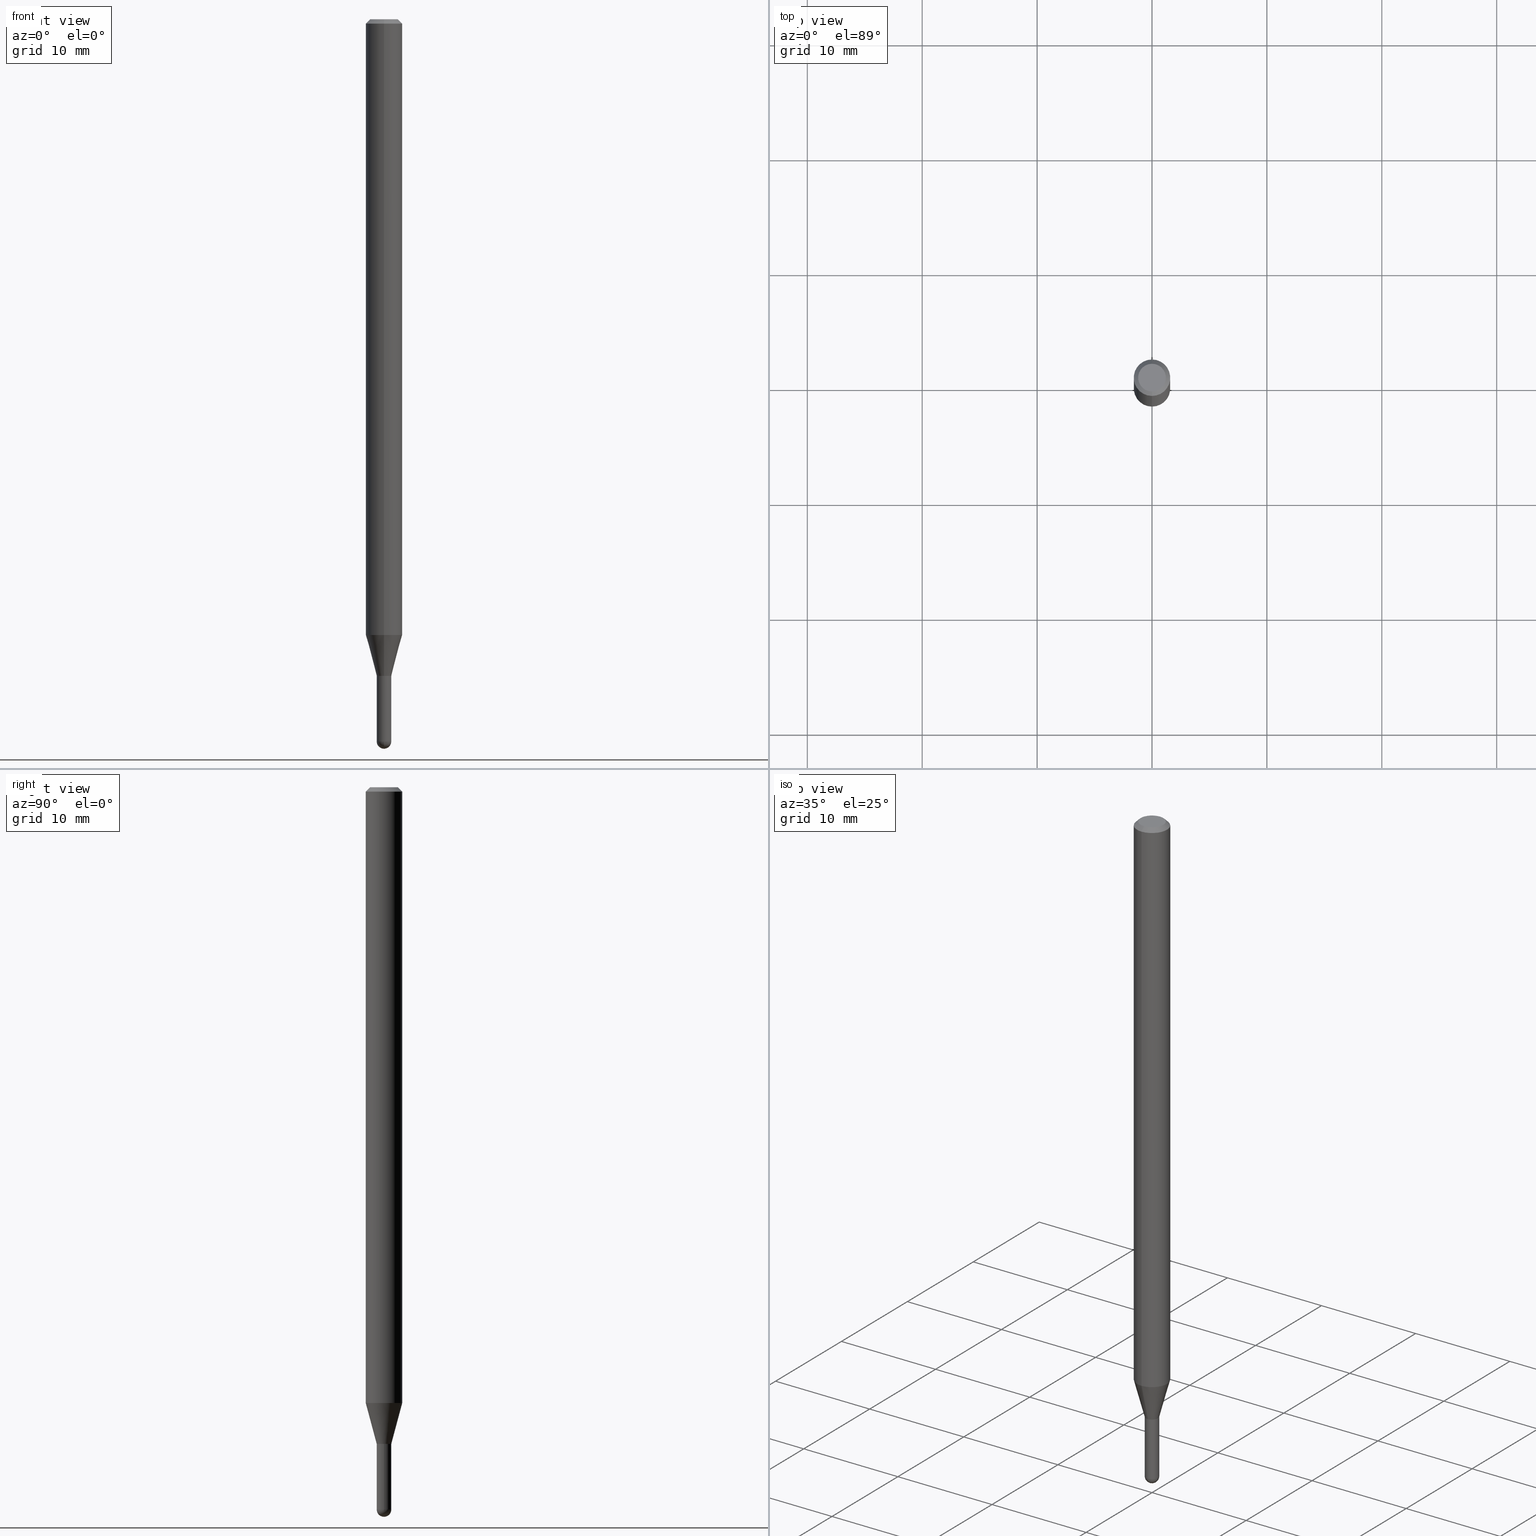
[diagram: canonical four-view strip — front | top / right | iso, engineering-drawing reading convention]
A machine part, canonical four-view strip (front | top / right | iso — engineering-drawing reading convention). The complete STEP part file that produces these views, byte-faithful:
ISO-10303-21;
HEADER;
FILE_DESCRIPTION (( 'STEP AP203' ),
    '1' );
FILE_NAME ('01509.STEP',
    '2024-03-07T19:35:54',
    ( '' ),
    ( '' ),
    'SwSTEP 2.0',
    'SolidWorks 2023',
    '' );
FILE_SCHEMA (( 'CONFIG_CONTROL_DESIGN' ));
ENDSEC;

DATA;
#1 = CALENDAR_DATE ( 2024, 7, 3 ) ;
#2 = VECTOR ( 'NONE', #280, 39.37007874015748143 ) ;
#3 = VERTEX_POINT ( 'NONE', #376 ) ;
#4 = DIRECTION ( 'NONE',  ( 6.982962677686266711E-15, 1.000000000000000000, 0.000000000000000000 ) ) ;
#5 = AXIS2_PLACEMENT_3D ( 'NONE', #183, #260, #253 ) ;
#6 = ADVANCED_FACE ( 'NONE', ( #55 ), #28, .T. ) ;
#7 = LINE ( 'NONE', #153, #492 ) ;
#8 = EDGE_CURVE ( 'NONE', #317, #197, #360, .T. ) ;
#9 = DESIGN_CONTEXT ( 'detailed design', #125, 'design' ) ;
#10 = ORIENTED_EDGE ( 'NONE', *, *, #367, .T. ) ;
#11 = LOCAL_TIME ( 14, 35, 54.00000000000000000, #450 ) ;
#12 = VECTOR ( 'NONE', #193, 39.37007874015748143 ) ;
#13 = CYLINDRICAL_SURFACE ( 'NONE', #425, 0.06250000000000000000 ) ;
#14 = VERTEX_POINT ( 'NONE', #15 ) ;
#15 = CARTESIAN_POINT ( 'NONE',  ( -4.364351673553912750E-16, -0.06250000000000005551, -0.01499999999999979128 ) ) ;
#16 = FACE_OUTER_BOUND ( 'NONE', #41, .T. ) ;
#17 = EDGE_LOOP ( 'NONE', ( #468, #428, #164, #302 ) ) ;
#18 = DIRECTION ( 'NONE',  ( 2.445435961615389685E-29, -3.491528374136419427E-15, -1.000000000000000000 ) ) ;
#19 = CARTESIAN_POINT ( 'NONE',  ( 5.502230913634628262E-29, -7.855938841806944106E-15, -2.250000000000000444 ) ) ;
#20 = APPROVAL_DATE_TIME ( #44, #188 ) ;
#21 = CARTESIAN_POINT ( 'NONE',  ( 5.501008195653820758E-29, -7.854193077619875867E-15, -2.249500000000000277 ) ) ;
#22 = CARTESIAN_POINT ( 'NONE',  ( 5.502230913634628262E-29, -7.855938841806944106E-15, -2.250000000000000444 ) ) ;
#23 = CC_DESIGN_PERSON_AND_ORGANIZATION_ASSIGNMENT ( #109, #322, ( #455 ) ) ;
#24 = CALENDAR_DATE ( 2024, 7, 3 ) ;
#25 = CARTESIAN_POINT ( 'NONE',  ( 5.501008195653820758E-29, -7.854193077619875867E-15, -2.249500000000000277 ) ) ;
#26 = CARTESIAN_POINT ( 'NONE',  ( 1.740829702612795753E-16, 0.02449999999999214959, -2.250000000000000444 ) ) ;
#27 = VECTOR ( 'NONE', #493, 39.37007874015748143 ) ;
#28 = CONICAL_SURFACE ( 'NONE', #80, 0.02450000000000000441, 0.7853981633974697063 ) ;
#29 = VERTEX_POINT ( 'NONE', #413 ) ;
#30 = LINE ( 'NONE', #421, #12 ) ;
#31 = VECTOR ( 'NONE', #212, 39.37007874015748143 ) ;
#32 = DIRECTION ( 'NONE',  ( 1.000000000000000000, 0.000000000000000000, 0.000000000000000000 ) ) ;
#33 = ORIENTED_EDGE ( 'NONE', *, *, #59, .T. ) ;
#34 = CARTESIAN_POINT ( 'NONE',  ( 5.502230913634628262E-29, -7.855938841806944106E-15, -2.250000000000000000 ) ) ;
#35 = PLANE ( 'NONE',  #67 ) ;
#36 = CARTESIAN_POINT ( 'NONE',  ( 6.050397379585265558E-29, -8.644477930634654356E-15, -2.475000000000000089 ) ) ;
#37 = CARTESIAN_POINT ( 'NONE',  ( 1.776356839400814845E-16, 0.02499999999999234779, -2.250000000000000000 ) ) ;
#38 = ORIENTED_EDGE ( 'NONE', *, *, #261, .F. ) ;
#39 = FACE_OUTER_BOUND ( 'NONE', #257, .T. ) ;
#40 = PERSON_AND_ORGANIZATION ( #500, #306 ) ;
#41 = EDGE_LOOP ( 'NONE', ( #391, #484, #131, #69, #277 ) ) ;
#42 = EDGE_CURVE ( 'NONE', #410, #230, #152, .T. ) ;
#43 = EDGE_LOOP ( 'NONE', ( #38, #512, #437, #204 ) ) ;
#44 = DATE_AND_TIME ( #24, #218 ) ;
#45 = ORIENTED_EDGE ( 'NONE', *, *, #222, .T. ) ;
#46 = VERTEX_POINT ( 'NONE', #457 ) ;
#47 = AXIS2_PLACEMENT_3D ( 'NONE', #461, #314, #469 ) ;
#48 = CARTESIAN_POINT ( 'NONE',  ( 0.000000000000000000, 0.000000000000000000, 0.000000000000000000 ) ) ;
#49 = ADVANCED_FACE ( 'NONE', ( #175 ), #135, .T. ) ;
#50 = DIRECTION ( 'NONE',  ( -6.982962677686265922E-15, -1.000000000000000000, 3.491528374136419427E-15 ) ) ;
#51 = ORIENTED_EDGE ( 'NONE', *, *, #146, .F. ) ;
#52 = EDGE_CURVE ( 'NONE', #393, #395, #460, .T. ) ;
#53 = DIRECTION ( 'NONE',  ( -2.445435961615390245E-29, 3.491528374136419427E-15, 1.000000000000000000 ) ) ;
#54 = APPROVAL_PERSON_ORGANIZATION ( #294, #326, #56 ) ;
#55 = FACE_OUTER_BOUND ( 'NONE', #508, .T. ) ;
#56 = APPROVAL_ROLE ( '' ) ;
#57 = CIRCLE ( 'NONE', #112, 0.02500000000000019915 ) ;
#58 = DIRECTION ( 'NONE',  ( -2.445435961615390245E-29, 3.491528374136419427E-15, 1.000000000000000000 ) ) ;
#59 = EDGE_CURVE ( 'NONE', #330, #3, #57, .T. ) ;
#60 = AXIS2_PLACEMENT_3D ( 'NONE', #176, #298, #249 ) ;
#61 = PRODUCT ( '01509', '01509', '', ( #510 ) ) ;
#62 = ORIENTED_EDGE ( 'NONE', *, *, #106, .T. ) ;
#63 = CARTESIAN_POINT ( 'NONE',  ( -0.02500000000000000486, -8.070988979076907324E-15, -2.475000000000000089 ) ) ;
#64 = CC_DESIGN_APPROVAL ( #326, ( #209 ) ) ;
#65 = CARTESIAN_POINT ( 'NONE',  ( 3.840629472727447874E-16, 0.04749999999999999362, -1.747056831868805136E-16 ) ) ;
#66 = ADVANCED_FACE ( 'NONE', ( #293 ), #377, .T. ) ;
#67 = AXIS2_PLACEMENT_3D ( 'NONE', #389, #464, #107 ) ;
#68 = DIRECTION ( 'NONE',  ( -2.445468806185136597E-29, 3.491481338843145583E-15, 1.000000000000000000 ) ) ;
#69 = ORIENTED_EDGE ( 'NONE', *, *, #129, .T. ) ;
#70 = DIRECTION ( 'NONE',  ( 1.000000000000000000, -6.982962677686254878E-15, 0.000000000000000000 ) ) ;
#71 =( NAMED_UNIT ( * ) PLANE_ANGLE_UNIT ( ) SI_UNIT ( $, .RADIAN. ) );
#72 = FACE_OUTER_BOUND ( 'NONE', #17, .T. ) ;
#73 = CARTESIAN_POINT ( 'NONE',  ( 6.052535295308213750E-29, -8.641416313636786609E-15, -2.475000000000000089 ) ) ;
#74 = EDGE_LOOP ( 'NONE', ( #169, #287 ) ) ;
#75 = COORDINATED_UNIVERSAL_TIME_OFFSET ( 5, 0, .BEHIND. ) ;
#76 = CARTESIAN_POINT ( 'NONE',  ( 6.050397379585265558E-29, -8.644477930634654356E-15, -2.475000000000000089 ) ) ;
#77 = CARTESIAN_POINT ( 'NONE',  ( 6.050397379585265558E-29, -8.644477930634654356E-15, -2.475000000000000089 ) ) ;
#78 = VERTEX_POINT ( 'NONE', #179 ) ;
#79 = DATE_TIME_ROLE ( 'creation_date' ) ;
#80 = AXIS2_PLACEMENT_3D ( 'NONE', #22, #497, #343 ) ;
#81 = DATE_AND_TIME ( #1, #227 ) ;
#82 = ORIENTED_EDGE ( 'NONE', *, *, #233, .F. ) ;
#83 = PRODUCT_RELATED_PRODUCT_CATEGORY ( 'detail', '', ( #61 ) ) ;
#84 = EDGE_CURVE ( 'NONE', #375, #46, #406, .T. ) ;
#85 = LINE ( 'NONE', #369, #31 ) ;
#86 = VERTEX_POINT ( 'NONE', #128 ) ;
#87 = CARTESIAN_POINT ( 'NONE',  ( 5.502230913634628262E-29, -7.855938841806944106E-15, -2.250000000000000444 ) ) ;
#88 = CIRCLE ( 'NONE', #373, 0.02450000000000000441 ) ;
#89 = ADVANCED_FACE ( 'NONE', ( #132 ), #419, .T. ) ;
#90 = AXIS2_PLACEMENT_3D ( 'NONE', #194, #278, #352 ) ;
#91 = LINE ( 'NONE', #251, #436 ) ;
#92 = DIRECTION ( 'NONE',  ( -2.445435961615390245E-29, 3.491528374136419427E-15, 1.000000000000000000 ) ) ;
#93 = CARTESIAN_POINT ( 'NONE',  ( 5.159987491556965604E-29, -7.367292793494006294E-15, -2.110048094716172606 ) ) ;
#94 = CARTESIAN_POINT ( 'NONE',  ( 0.02500000000000000486, -1.745740669421567171E-16, 1.219044193948984299E-30 ) ) ;
#95 = DIRECTION ( 'NONE',  ( -4.851104656540964275E-15, -0.7071067811865500152, -0.7071067811865450192 ) ) ;
#96 = DATE_AND_TIME ( #381, #105 ) ;
#97 = AXIS2_PLACEMENT_3D ( 'NONE', #271, #388, #441 ) ;
#98 = AXIS2_PLACEMENT_3D ( 'NONE', #412, #53, #217 ) ;
#99 = DIRECTION ( 'NONE',  ( -6.982962677686265922E-15, -1.000000000000000000, 3.483106191921935554E-15 ) ) ;
#100 = DIRECTION ( 'NONE',  ( -2.445435961615389685E-29, 3.491528374136419427E-15, 1.000000000000000000 ) ) ;
#101 = DIRECTION ( 'NONE',  ( -2.445435961615390245E-29, 3.491528374136419427E-15, 1.000000000000000000 ) ) ;
#102 = ORIENTED_EDGE ( 'NONE', *, *, #224, .F. ) ;
#103 = APPROVAL_DATE_TIME ( #342, #326 ) ;
#104 = DIRECTION ( 'NONE',  ( 6.982962677686265922E-15, 1.000000000000000000, -3.483106191921935554E-15 ) ) ;
#105 = LOCAL_TIME ( 14, 35, 54.00000000000000000, #415 ) ;
#106 = EDGE_CURVE ( 'NONE', #197, #14, #91, .T. ) ;
#107 = DIRECTION ( 'NONE',  ( -1.000000000000000000, 6.982962677686265922E-15, -4.876176775795935793E-29 ) ) ;
#108 = DIRECTION ( 'NONE',  ( -2.445435961615390245E-29, 3.491528374136419427E-15, 1.000000000000000000 ) ) ;
#109 = PERSON_AND_ORGANIZATION ( #500, #306 ) ;
#110 = CIRCLE ( 'NONE', #368, 0.02500000000000000139 ) ;
#111 = EDGE_LOOP ( 'NONE', ( #127, #473, #210, #192 ) ) ;
#112 = AXIS2_PLACEMENT_3D ( 'NONE', #25, #371, #489 ) ;
#113 = DIRECTION ( 'NONE',  ( 1.000000000000000000, -6.982962677686253300E-15, 0.000000000000000000 ) ) ;
#114 = EDGE_CURVE ( 'NONE', #196, #155, #341, .T. ) ;
#115 = CC_DESIGN_PERSON_AND_ORGANIZATION_ASSIGNMENT ( #453, #495, ( #337 ) ) ;
#116 = EDGE_LOOP ( 'NONE', ( #466, #312 ) ) ;
#117 = COORDINATED_UNIVERSAL_TIME_OFFSET ( 5, 0, .BEHIND. ) ;
#118 = CARTESIAN_POINT ( 'NONE',  ( 4.440892098501145824E-16, 0.06249999999999995143, -0.01500000000000022669 ) ) ;
#119 = ORIENTED_EDGE ( 'NONE', *, *, #367, .F. ) ;
#120 = EDGE_LOOP ( 'NONE', ( #328, #10, #171, #338 ) ) ;
#121 = ORIENTED_EDGE ( 'NONE', *, *, #319, .T. ) ;
#122 = DIRECTION ( 'NONE',  ( -2.445435961615390245E-29, 3.491528374136419427E-15, 1.000000000000000000 ) ) ;
#123 = EDGE_LOOP ( 'NONE', ( #321, #121, #332, #423 ) ) ;
#124 = ADVANCED_FACE ( 'NONE', ( #409 ), #487, .F. ) ;
#125 = APPLICATION_CONTEXT ( 'configuration controlled 3d designs of mechanical parts and assemblies' ) ;
#126 = DIRECTION ( 'NONE',  ( 1.000000000000000000, -6.982962677686253300E-15, 0.000000000000000000 ) ) ;
#127 = ORIENTED_EDGE ( 'NONE', *, *, #106, .F. ) ;
#128 = CARTESIAN_POINT ( 'NONE',  ( 0.02500000000000000139, -8.030407079339233538E-15, -2.250000000000000000 ) ) ;
#129 = EDGE_CURVE ( 'NONE', #200, #86, #370, .T. ) ;
#130 = CARTESIAN_POINT ( 'NONE',  ( -0.02500000000000000139, -8.070988979076907324E-15, -2.250000000000000000 ) ) ;
#131 = ORIENTED_EDGE ( 'NONE', *, *, #185, .T. ) ;
#132 = FACE_OUTER_BOUND ( 'NONE', #158, .T. ) ;
#133 = CC_DESIGN_APPROVAL ( #145, ( #455 ) ) ;
#134 = EDGE_CURVE ( 'NONE', #46, #14, #335, .T. ) ;
#135 = CONICAL_SURFACE ( 'NONE', #5, 0.02500000000000020262, 0.2617993877991574569 ) ;
#136 = CARTESIAN_POINT ( 'NONE',  ( -1.745740669421580729E-16, -0.02500000000000020262, 8.728820935341120552E-17 ) ) ;
#137 = ORIENTED_EDGE ( 'NONE', *, *, #345, .T. ) ;
#138 = DIRECTION ( 'NONE',  ( -2.445435961615390245E-29, 3.491528374136419427E-15, 1.000000000000000000 ) ) ;
#139 = CARTESIAN_POINT ( 'NONE',  ( -4.364351673553916201E-16, -0.06250000000000000000, 2.182205233835262142E-16 ) ) ;
#140 = CARTESIAN_POINT ( 'NONE',  ( -0.02500000000000000486, 1.776356839400250810E-16, -1.229733772563726656E-30 ) ) ;
#141 = CARTESIAN_POINT ( 'NONE',  ( 5.502230913634628262E-29, -7.855938841806944106E-15, -2.250000000000000444 ) ) ;
#142 = CARTESIAN_POINT ( 'NONE',  ( 3.668153942423087382E-31, -5.237292561204631655E-17, -0.01500000000000000812 ) ) ;
#143 = AXIS2_PLACEMENT_3D ( 'NONE', #282, #108, #396 ) ;
#144 = CIRCLE ( 'NONE', #256, 0.02500000000000000486 ) ;
#145 = APPROVAL ( #318, 'UNSPECIFIED' ) ;
#146 = EDGE_CURVE ( 'NONE', #78, #3, #339, .T. ) ;
#147 = CALENDAR_DATE ( 2024, 7, 3 ) ;
#148 = ADVANCED_FACE ( 'NONE', ( #296 ), #372, .F. ) ;
#149 = EDGE_CURVE ( 'NONE', #197, #317, #414, .T. ) ;
#150 = VECTOR ( 'NONE', #310, 39.37007874015748143 ) ;
#151 = EDGE_LOOP ( 'NONE', ( #462, #237, #494, #470 ) ) ;
#152 = CIRCLE ( 'NONE', #203, 0.02450000000000000441 ) ;
#153 = CARTESIAN_POINT ( 'NONE',  ( -1.745740669421030499E-16, -0.02500000000000805744, -2.250000000000000000 ) ) ;
#154 = CARTESIAN_POINT ( 'NONE',  ( 5.159987491556965604E-29, -7.367292793494006294E-15, -2.110048094716172606 ) ) ;
#155 = VERTEX_POINT ( 'NONE', #130 ) ;
#156 = DIRECTION ( 'NONE',  ( -2.445468806185136597E-29, 3.491481338843145583E-15, 1.000000000000000000 ) ) ;
#157 = DIRECTION ( 'NONE',  ( -2.445435961615390245E-29, 3.491528374136419427E-15, 1.000000000000000000 ) ) ;
#158 = EDGE_LOOP ( 'NONE', ( #274, #62, #45, #292 ) ) ;
#159 = AXIS2_PLACEMENT_3D ( 'NONE', #36, #315, #465 ) ;
#160 = LINE ( 'NONE', #166, #390 ) ;
#161 = CIRCLE ( 'NONE', #323, 0.02500000000000019915 ) ;
#162 = EDGE_CURVE ( 'NONE', #3, #330, #161, .T. ) ;
#163 = SPHERICAL_SURFACE ( 'NONE', #191, 0.02499999999999993894 ) ;
#164 = ORIENTED_EDGE ( 'NONE', *, *, #134, .T. ) ;
#165 = AXIS2_PLACEMENT_3D ( 'NONE', #244, #336, #446 ) ;
#166 = CARTESIAN_POINT ( 'NONE',  ( 4.440892098500625669E-16, 0.06250000000000000000, -2.182205233835262142E-16 ) ) ;
#167 = DIRECTION ( 'NONE',  ( -1.000000000000000000, 6.982962677686266711E-15, -4.883557194083112901E-29 ) ) ;
#168 = LENGTH_MEASURE_WITH_UNIT ( LENGTH_MEASURE( 0.02539999999999999897 ), #268 );
#169 = ORIENTED_EDGE ( 'NONE', *, *, #8, .T. ) ;
#170 = ORIENTED_EDGE ( 'NONE', *, *, #216, .T. ) ;
#171 = ORIENTED_EDGE ( 'NONE', *, *, #475, .T. ) ;
#172 = ADVANCED_FACE ( 'NONE', ( #16 ), #275, .T. ) ;
#173 =( GEOMETRIC_REPRESENTATION_CONTEXT ( 3 ) GLOBAL_UNCERTAINTY_ASSIGNED_CONTEXT ( ( #300 ) ) GLOBAL_UNIT_ASSIGNED_CONTEXT ( ( #199, #71, #420 ) ) REPRESENTATION_CONTEXT ( 'NONE', 'WORKASPACE' ) );
#174 = DIRECTION ( 'NONE',  ( -2.445435961615390245E-29, 3.491528374136419427E-15, 1.000000000000000000 ) ) ;
#175 = FACE_OUTER_BOUND ( 'NONE', #355, .T. ) ;
#176 = CARTESIAN_POINT ( 'NONE',  ( 6.050397379585265558E-29, -8.644477930634654356E-15, -2.475000000000000089 ) ) ;
#177 = DIRECTION ( 'NONE',  ( -2.445468806185136877E-29, 3.491481338843145188E-15, 1.000000000000000000 ) ) ;
#178 = EDGE_LOOP ( 'NONE', ( #119, #444, #33, #51 ) ) ;
#179 = CARTESIAN_POINT ( 'NONE',  ( -1.745740669421030499E-16, -0.02500000000000805744, -2.250000000000000000 ) ) ;
#180 = CONICAL_SURFACE ( 'NONE', #320, 0.06250000000000000000, 0.7853981633974483900 ) ;
#181 = PERSON_AND_ORGANIZATION_ROLE ( 'creator' ) ;
#182 = DIRECTION ( 'NONE',  ( 6.982962677686265922E-15, 1.000000000000000000, -3.491528374136419427E-15 ) ) ;
#183 = CARTESIAN_POINT ( 'NONE',  ( 5.502230913634628262E-29, -7.855938841806944106E-15, -2.250000000000000000 ) ) ;
#184 = PERSON_AND_ORGANIZATION ( #500, #306 ) ;
#185 = EDGE_CURVE ( 'NONE', #395, #200, #211, .T. ) ;
#186 = CIRCLE ( 'NONE', #480, 0.02500000000000000139 ) ;
#187 = CARTESIAN_POINT ( 'NONE',  ( 5.502304813916557343E-29, -7.855833012397078448E-15, -2.250000000000000000 ) ) ;
#188 = APPROVAL ( #399, 'UNSPECIFIED' ) ;
#189 = CARTESIAN_POINT ( 'NONE',  ( 6.052535295308213750E-29, -8.641416313636786609E-15, -2.475000000000000089 ) ) ;
#190 = CARTESIAN_POINT ( 'NONE',  ( 4.364351673553919652E-16, 0.06249999999999995143, -0.01500000000000022669 ) ) ;
#191 = AXIS2_PLACEMENT_3D ( 'NONE', #77, #167, #327 ) ;
#192 = ORIENTED_EDGE ( 'NONE', *, *, #380, .T. ) ;
#193 = DIRECTION ( 'NONE',  ( -4.937700262164653750E-15, -0.7071067811865602293, 0.7071067811865348052 ) ) ;
#194 = CARTESIAN_POINT ( 'NONE',  ( 3.668153942423087382E-31, -5.237292561204631655E-17, -0.01500000000000000812 ) ) ;
#195 = APPLICATION_PROTOCOL_DEFINITION ( 'international standard', 'config_control_design', 1994, #481 ) ;
#196 = VERTEX_POINT ( 'NONE', #63 ) ;
#197 = VERTEX_POINT ( 'NONE', #504 ) ;
#198 = CARTESIAN_POINT ( 'NONE',  ( 6.052535295308213750E-29, -8.641416313636786609E-15, -2.475000000000000089 ) ) ;
#199 =( CONVERSION_BASED_UNIT ( 'INCH', #168 ) LENGTH_UNIT ( ) NAMED_UNIT ( #248 ) );
#200 = VERTEX_POINT ( 'NONE', #506 ) ;
#201 = CALENDAR_DATE ( 2024, 7, 3 ) ;
#202 = LOCAL_TIME ( 14, 35, 54.00000000000000000, #75 ) ;
#203 = AXIS2_PLACEMENT_3D ( 'NONE', #87, #101, #220 ) ;
#204 = ORIENTED_EDGE ( 'NONE', *, *, #162, .T. ) ;
#205 = AXIS2_PLACEMENT_3D ( 'NONE', #19, #58, #485 ) ;
#206 = APPROVAL_DATE_TIME ( #81, #145 ) ;
#207 = EDGE_LOOP ( 'NONE', ( #430, #331, #82, #476 ) ) ;
#208 = FACE_OUTER_BOUND ( 'NONE', #43, .T. ) ;
#209 = SECURITY_CLASSIFICATION ( '', '', #252 ) ;
#210 = ORIENTED_EDGE ( 'NONE', *, *, #427, .T. ) ;
#211 = CIRCLE ( 'NONE', #405, 0.02500000000000000486 ) ;
#212 = DIRECTION ( 'NONE',  ( -2.445435961615390245E-29, 3.491528374136419427E-15, 1.000000000000000000 ) ) ;
#213 = CYLINDRICAL_SURFACE ( 'NONE', #228, 0.02500000000000020262 ) ;
#214 = ADVANCED_FACE ( 'NONE', ( #39 ), #35, .F. ) ;
#215 = ORIENTED_EDGE ( 'NONE', *, *, #273, .F. ) ;
#216 = EDGE_CURVE ( 'NONE', #155, #86, #110, .T. ) ;
#217 = DIRECTION ( 'NONE',  ( -6.982962677686266711E-15, -1.000000000000000000, 3.491528374136419822E-15 ) ) ;
#218 = LOCAL_TIME ( 14, 35, 54.00000000000000000, #477 ) ;
#219 = CARTESIAN_POINT ( 'NONE',  ( -1.776356839399643140E-16, -0.02500000000000861256, -2.475000000000000089 ) ) ;
#220 = DIRECTION ( 'NONE',  ( -6.982962677686265922E-15, -1.000000000000000000, 0.000000000000000000 ) ) ;
#221 = CC_DESIGN_DATE_AND_TIME_ASSIGNMENT ( #96, #490, ( #209 ) ) ;
#222 = EDGE_CURVE ( 'NONE', #14, #361, #445, .T. ) ;
#223 = MANIFOLD_SOLID_BREP ( 'Body-Move/Copy2[2]', #418 ) ;
#224 = EDGE_CURVE ( 'NONE', #86, #155, #186, .T. ) ;
#225 = MANIFOLD_SOLID_BREP ( 'Body-Move/Copy2[1]', #265 ) ;
#226 = DIRECTION ( 'NONE',  ( 1.000000000000000000, -6.982962677686254878E-15, 0.000000000000000000 ) ) ;
#227 = LOCAL_TIME ( 14, 35, 54.00000000000000000, #117 ) ;
#228 = AXIS2_PLACEMENT_3D ( 'NONE', #48, #366, #486 ) ;
#229 = FACE_OUTER_BOUND ( 'NONE', #404, .T. ) ;
#230 = VERTEX_POINT ( 'NONE', #424 ) ;
#231 = CC_DESIGN_DATE_AND_TIME_ASSIGNMENT ( #358, #79, ( #455 ) ) ;
#232 = PERSON_AND_ORGANIZATION_ROLE ( 'design_owner' ) ;
#233 = EDGE_CURVE ( 'NONE', #196, #395, #144, .T. ) ;
#234 = ADVANCED_FACE ( 'NONE', ( #208 ), #213, .F. ) ;
#235 = LINE ( 'NONE', #37, #2 ) ;
#236 = DIRECTION ( 'NONE',  ( 1.000000000000000000, -6.982962677686253300E-15, 0.000000000000000000 ) ) ;
#237 = ORIENTED_EDGE ( 'NONE', *, *, #491, .T. ) ;
#238 = DIRECTION ( 'NONE',  ( -6.982962677686266711E-15, -1.000000000000000000, 0.000000000000000000 ) ) ;
#239 = ORIENTED_EDGE ( 'NONE', *, *, #364, .T. ) ;
#240 = PERSON_AND_ORGANIZATION ( #500, #306 ) ;
#241 = AXIS2_PLACEMENT_3D ( 'NONE', #279, #325, #32 ) ;
#242 = ORIENTED_EDGE ( 'NONE', *, *, #247, .T. ) ;
#243 = ADVANCED_FACE ( 'NONE', ( #246 ), #13, .T. ) ;
#244 = CARTESIAN_POINT ( 'NONE',  ( 3.668153942423087382E-31, -5.237292561204631655E-17, -0.01500000000000000812 ) ) ;
#245 = CARTESIAN_POINT ( 'NONE',  ( 6.112603057601368517E-29, -8.730234155606798816E-15, -2.500000000000000000 ) ) ;
#246 = FACE_OUTER_BOUND ( 'NONE', #435, .T. ) ;
#247 = EDGE_CURVE ( 'NONE', #200, #29, #502, .T. ) ;
#248 = DIMENSIONAL_EXPONENTS ( 1.000000000000000000, 0.000000000000000000, 0.000000000000000000, 0.000000000000000000, 0.000000000000000000, 0.000000000000000000, 0.000000000000000000 ) ;
#249 = DIRECTION ( 'NONE',  ( -7.105427357601001070E-15, -1.000000000000000000, 0.000000000000000000 ) ) ;
#250 = DIRECTION ( 'NONE',  ( -6.982962677686266711E-15, -1.000000000000000000, 3.491528374136419822E-15 ) ) ;
#251 = CARTESIAN_POINT ( 'NONE',  ( -4.287811248607203282E-16, -0.06250000000000005551, -0.01499999999999979128 ) ) ;
#252 = SECURITY_CLASSIFICATION_LEVEL ( 'unclassified' ) ;
#253 = DIRECTION ( 'NONE',  ( -6.982962677686266711E-15, -1.000000000000000000, 0.000000000000000000 ) ) ;
#254 = CIRCLE ( 'NONE', #159, 0.02499999999999993894 ) ;
#255 = PERSON_AND_ORGANIZATION_ROLE ( 'classification_officer' ) ;
#256 = AXIS2_PLACEMENT_3D ( 'NONE', #198, #288, #290 ) ;
#257 = EDGE_LOOP ( 'NONE', ( #289, #170 ) ) ;
#258 = CARTESIAN_POINT ( 'NONE',  ( 1.776356839400808436E-16, 0.02499999999999225758, -2.249500000000000277 ) ) ;
#259 = FACE_OUTER_BOUND ( 'NONE', #120, .T. ) ;
#260 = DIRECTION ( 'NONE',  ( -2.445435961615390245E-29, 3.491528374136419427E-15, 1.000000000000000000 ) ) ;
#261 = EDGE_CURVE ( 'NONE', #283, #330, #85, .T. ) ;
#262 = APPROVAL_STATUS ( 'not_yet_approved' ) ;
#263 = CARTESIAN_POINT ( 'NONE',  ( 3.668153942423087382E-31, -5.237292561204631655E-17, -0.01500000000000000812 ) ) ;
#264 = FACE_OUTER_BOUND ( 'NONE', #207, .T. ) ;
#265 = CLOSED_SHELL ( 'NONE', ( #385, #357, #214, #266, #172 ) ) ;
#266 = ADVANCED_FACE ( 'NONE', ( #463 ), #394, .T. ) ;
#267 = DIRECTION ( 'NONE',  ( -2.445468806185136597E-29, 3.491481338843145583E-15, 1.000000000000000000 ) ) ;
#268 =( LENGTH_UNIT ( ) NAMED_UNIT ( * ) SI_UNIT ( $, .METRE. ) );
#269 = DIRECTION ( 'NONE',  ( -6.982962677686265922E-15, -1.000000000000000000, 4.370956789862821150E-15 ) ) ;
#270 = EDGE_CURVE ( 'NONE', #375, #361, #160, .T. ) ;
#271 = CARTESIAN_POINT ( 'NONE',  ( 0.000000000000000000, 0.000000000000000000, 0.000000000000000000 ) ) ;
#272 = APPROVAL_PERSON_ORGANIZATION ( #240, #188, #329 ) ;
#273 = EDGE_CURVE ( 'NONE', #410, #3, #30, .T. ) ;
#274 = ORIENTED_EDGE ( 'NONE', *, *, #149, .F. ) ;
#275 = CYLINDRICAL_SURFACE ( 'NONE', #47, 0.02500000000000000486 ) ;
#276 = AXIS2_PLACEMENT_3D ( 'NONE', #299, #443, #250 ) ;
#277 = ORIENTED_EDGE ( 'NONE', *, *, #216, .F. ) ;
#278 = DIRECTION ( 'NONE',  ( -2.445435961615390245E-29, 3.491528374136419427E-15, 1.000000000000000000 ) ) ;
#279 = CARTESIAN_POINT ( 'NONE',  ( 0.000000000000000000, 0.000000000000000000, 0.000000000000000000 ) ) ;
#280 = DIRECTION ( 'NONE',  ( 1.839019923739649619E-15, 0.2588190451025318972, 0.9659258262890653146 ) ) ;
#281 = ORIENTED_EDGE ( 'NONE', *, *, #162, .F. ) ;
#282 = CARTESIAN_POINT ( 'NONE',  ( 0.000000000000000000, 0.000000000000000000, 0.000000000000000000 ) ) ;
#283 = VERTEX_POINT ( 'NONE', #507 ) ;
#284 = CARTESIAN_POINT ( 'NONE',  ( -1.710825856032585390E-16, -0.02450000000000785924, -2.250000000000000444 ) ) ;
#285 = CC_DESIGN_PERSON_AND_ORGANIZATION_ASSIGNMENT ( #474, #232, ( #61 ) ) ;
#286 = AXIS2_PLACEMENT_3D ( 'NONE', #362, #472, #238 ) ;
#287 = ORIENTED_EDGE ( 'NONE', *, *, #149, .T. ) ;
#288 = DIRECTION ( 'NONE',  ( -2.445468806185136597E-29, 3.491481338843145583E-15, 1.000000000000000000 ) ) ;
#289 = ORIENTED_EDGE ( 'NONE', *, *, #224, .T. ) ;
#290 = DIRECTION ( 'NONE',  ( 1.000000000000000000, -6.982962677686253300E-15, 0.000000000000000000 ) ) ;
#291 = DIRECTION ( 'NONE',  ( -2.445468806185136877E-29, 3.491481338843145188E-15, 1.000000000000000000 ) ) ;
#292 = ORIENTED_EDGE ( 'NONE', *, *, #427, .F. ) ;
#293 = FACE_OUTER_BOUND ( 'NONE', #123, .T. ) ;
#294 = PERSON_AND_ORGANIZATION ( #500, #306 ) ;
#295 = AXIS2_PLACEMENT_3D ( 'NONE', #449, #18, #182 ) ;
#296 = FACE_OUTER_BOUND ( 'NONE', #178, .T. ) ;
#297 = ADVANCED_BREP_SHAPE_REPRESENTATION ( '01509', ( #225, #223, #241 ), #173 ) ;
#298 = DIRECTION ( 'NONE',  ( -1.000000000000000000, 7.105427357601001070E-15, -4.926315508542082329E-29 ) ) ;
#299 = CARTESIAN_POINT ( 'NONE',  ( 0.000000000000000000, 0.000000000000000000, 0.000000000000000000 ) ) ;
#300 = UNCERTAINTY_MEASURE_WITH_UNIT (LENGTH_MEASURE( 1.000000000000000082E-05 ), #199, 'distance_accuracy_value', 'NONE');
#301 = DIRECTION ( 'NONE',  ( -6.982962677686265922E-15, -1.000000000000000000, 3.491528374136419427E-15 ) ) ;
#302 = ORIENTED_EDGE ( 'NONE', *, *, #380, .F. ) ;
#303 = DIRECTION ( 'NONE',  ( -2.445435961615390245E-29, 3.491528374136419427E-15, 1.000000000000000000 ) ) ;
#304 = CARTESIAN_POINT ( 'NONE',  ( 5.502230913634628262E-29, -7.855938841806944106E-15, -2.250000000000000444 ) ) ;
#305 = CIRCLE ( 'NONE', #286, 0.02500000000000020262 ) ;
#306 = ORGANIZATION ( 'UNSPECIFIED', 'UNSPECIFIED', '' ) ;
#307 = CIRCLE ( 'NONE', #349, 0.06250000000000000000 ) ;
#308 = ORIENTED_EDGE ( 'NONE', *, *, #270, .T. ) ;
#309 = SHAPE_DEFINITION_REPRESENTATION ( #503, #297 ) ;
#310 = DIRECTION ( 'NONE',  ( 5.024295867788169675E-15, 0.7071067811865651143, 0.7071067811865299202 ) ) ;
#311 = VECTOR ( 'NONE', #351, 39.37007874015748143 ) ;
#312 = ORIENTED_EDGE ( 'NONE', *, *, #319, .F. ) ;
#313 = DIRECTION ( 'NONE',  ( -2.445435961615390245E-29, 3.491528374136419427E-15, 1.000000000000000000 ) ) ;
#314 = DIRECTION ( 'NONE',  ( -2.445468806185136597E-29, 3.491481338843145583E-15, 1.000000000000000000 ) ) ;
#315 = DIRECTION ( 'NONE',  ( 1.000000000000000000, -6.982962677686265922E-15, 4.883557194083112340E-29 ) ) ;
#316 = EDGE_CURVE ( 'NONE', #46, #375, #307, .T. ) ;
#317 = VERTEX_POINT ( 'NONE', #65 ) ;
#318 = APPROVAL_STATUS ( 'not_yet_approved' ) ;
#319 = EDGE_CURVE ( 'NONE', #230, #410, #88, .T. ) ;
#320 = AXIS2_PLACEMENT_3D ( 'NONE', #263, #383, #104 ) ;
#321 = ORIENTED_EDGE ( 'NONE', *, *, #345, .F. ) ;
#322 = PERSON_AND_ORGANIZATION_ROLE ( 'creator' ) ;
#323 = AXIS2_PLACEMENT_3D ( 'NONE', #21, #496, #451 ) ;
#324 = AXIS2_PLACEMENT_3D ( 'NONE', #93, #138, #440 ) ;
#325 = DIRECTION ( 'NONE',  ( 0.000000000000000000, 0.000000000000000000, 1.000000000000000000 ) ) ;
#326 = APPROVAL ( #262, 'UNSPECIFIED' ) ;
#327 = DIRECTION ( 'NONE',  ( 6.982962677686266711E-15, 1.000000000000000000, 0.000000000000000000 ) ) ;
#328 = ORIENTED_EDGE ( 'NONE', *, *, #364, .F. ) ;
#329 = APPROVAL_ROLE ( '' ) ;
#330 = VERTEX_POINT ( 'NONE', #258 ) ;
#331 = ORIENTED_EDGE ( 'NONE', *, *, #52, .T. ) ;
#332 = ORIENTED_EDGE ( 'NONE', *, *, #273, .T. ) ;
#333 = AXIS2_PLACEMENT_3D ( 'NONE', #34, #157, #422 ) ;
#334 = AXIS2_PLACEMENT_3D ( 'NONE', #76, #397, #4 ) ;
#335 = LINE ( 'NONE', #139, #27 ) ;
#336 = DIRECTION ( 'NONE',  ( 2.445435961615390245E-29, -3.491528374136419427E-15, -1.000000000000000000 ) ) ;
#337 = PRODUCT_DEFINITION_FORMATION_WITH_SPECIFIED_SOURCE ( 'ANY', '', #61, .NOT_KNOWN. ) ;
#338 = ORIENTED_EDGE ( 'NONE', *, *, #84, .F. ) ;
#339 = LINE ( 'NONE', #136, #471 ) ;
#340 = CARTESIAN_POINT ( 'NONE',  ( 5.502230913634628262E-29, -7.855938841806944106E-15, -2.250000000000000000 ) ) ;
#341 = LINE ( 'NONE', #140, #447 ) ;
#342 = DATE_AND_TIME ( #147, #11 ) ;
#343 = DIRECTION ( 'NONE',  ( -6.982962677686265922E-15, -1.000000000000000000, 0.000000000000000000 ) ) ;
#344 = FACE_OUTER_BOUND ( 'NONE', #111, .T. ) ;
#345 = EDGE_CURVE ( 'NONE', #230, #330, #348, .T. ) ;
#346 = AXIS2_PLACEMENT_3D ( 'NONE', #439, #483, #126 ) ;
#347 = AXIS2_PLACEMENT_3D ( 'NONE', #452, #499, #379 ) ;
#348 = LINE ( 'NONE', #26, #150 ) ;
#349 = AXIS2_PLACEMENT_3D ( 'NONE', #154, #467, #269 ) ;
#350 = ADVANCED_FACE ( 'NONE', ( #344 ), #180, .T. ) ;
#351 = DIRECTION ( 'NONE',  ( 4.937700262164548042E-15, 0.7071067811865451302, -0.7071067811865499042 ) ) ;
#352 = DIRECTION ( 'NONE',  ( -6.982962677686265922E-15, -1.000000000000000000, 3.483106191921935554E-15 ) ) ;
#353 = ORIENTED_EDGE ( 'NONE', *, *, #316, .F. ) ;
#354 = APPLICATION_PROTOCOL_DEFINITION ( 'international standard', 'config_control_design', 1994, #125 ) ;
#355 = EDGE_LOOP ( 'NONE', ( #434, #239, #353, #488 ) ) ;
#356 = DIRECTION ( 'NONE',  ( -2.445468806185136597E-29, 3.491481338843145583E-15, 1.000000000000000000 ) ) ;
#357 = ADVANCED_FACE ( 'NONE', ( #264 ), #163, .T. ) ;
#358 = DATE_AND_TIME ( #201, #202 ) ;
#359 = CC_DESIGN_PERSON_AND_ORGANIZATION_ASSIGNMENT ( #184, #255, ( #209 ) ) ;
#360 = CIRCLE ( 'NONE', #347, 0.04749999999999999362 ) ;
#361 = VERTEX_POINT ( 'NONE', #118 ) ;
#362 = CARTESIAN_POINT ( 'NONE',  ( 5.502230913634628262E-29, -7.855938841806944106E-15, -2.250000000000000000 ) ) ;
#363 = ORIENTED_EDGE ( 'NONE', *, *, #222, .F. ) ;
#364 = EDGE_CURVE ( 'NONE', #283, #375, #235, .T. ) ;
#365 = CONICAL_SURFACE ( 'NONE', #382, 0.02500000000000020262, 0.2617993877991574569 ) ;
#366 = DIRECTION ( 'NONE',  ( -2.445435961615390245E-29, 3.491528374136419427E-15, 1.000000000000000000 ) ) ;
#367 = EDGE_CURVE ( 'NONE', #283, #78, #433, .T. ) ;
#368 = AXIS2_PLACEMENT_3D ( 'NONE', #187, #267, #226 ) ;
#369 = CARTESIAN_POINT ( 'NONE',  ( 1.776356839400264615E-16, 0.02500000000000020262, -8.728820935341120552E-17 ) ) ;
#370 = LINE ( 'NONE', #94, #458 ) ;
#371 = DIRECTION ( 'NONE',  ( -2.445435961615390245E-29, 3.491528374136419427E-15, 1.000000000000000000 ) ) ;
#372 = CYLINDRICAL_SURFACE ( 'NONE', #276, 0.02500000000000020262 ) ;
#373 = AXIS2_PLACEMENT_3D ( 'NONE', #141, #313, #456 ) ;
#374 = EDGE_CURVE ( 'NONE', #29, #196, #478, .T. ) ;
#375 = VERTEX_POINT ( 'NONE', #498 ) ;
#376 = CARTESIAN_POINT ( 'NONE',  ( -1.745740669421036415E-16, -0.02500000000000813724, -2.249500000000000277 ) ) ;
#377 = CONICAL_SURFACE ( 'NONE', #205, 0.02450000000000000441, 0.7853981633974697063 ) ;
#378 = FACE_OUTER_BOUND ( 'NONE', #116, .T. ) ;
#379 = DIRECTION ( 'NONE',  ( -6.982962677686266711E-15, -1.000000000000000000, 3.491528374136419822E-15 ) ) ;
#380 = EDGE_CURVE ( 'NONE', #361, #14, #417, .T. ) ;
#381 = CALENDAR_DATE ( 2024, 7, 3 ) ;
#382 = AXIS2_PLACEMENT_3D ( 'NONE', #340, #122, #482 ) ;
#383 = DIRECTION ( 'NONE',  ( 2.445435961615390245E-29, -3.491528374136419427E-15, -1.000000000000000000 ) ) ;
#384 = ADVANCED_FACE ( 'NONE', ( #259 ), #365, .T. ) ;
#385 = ADVANCED_FACE ( 'NONE', ( #229 ), #438, .T. ) ;
#386 = CC_DESIGN_PERSON_AND_ORGANIZATION_ASSIGNMENT ( #459, #181, ( #337 ) ) ;
#387 = ORIENTED_EDGE ( 'NONE', *, *, #316, .T. ) ;
#388 = DIRECTION ( 'NONE',  ( -2.445468806185136597E-29, 3.491481338843145583E-15, 1.000000000000000000 ) ) ;
#389 = CARTESIAN_POINT ( 'NONE',  ( 1.745740669422116662E-16, 0.02499999999999214656, -2.250000000000000000 ) ) ;
#390 = VECTOR ( 'NONE', #432, 39.37007874015748143 ) ;
#391 = ORIENTED_EDGE ( 'NONE', *, *, #114, .F. ) ;
#392 = ORIENTED_EDGE ( 'NONE', *, *, #129, .F. ) ;
#393 = VERTEX_POINT ( 'NONE', #245 ) ;
#394 = SPHERICAL_SURFACE ( 'NONE', #334, 0.02499999999999993894 ) ;
#395 = VERTEX_POINT ( 'NONE', #219 ) ;
#396 = DIRECTION ( 'NONE',  ( -6.982962677686265922E-15, -1.000000000000000000, 3.491528374136419427E-15 ) ) ;
#397 = DIRECTION ( 'NONE',  ( -1.000000000000000000, 6.982962677686266711E-15, -4.883557194083112901E-29 ) ) ;
#398 = AXIS2_PLACEMENT_3D ( 'NONE', #142, #303, #99 ) ;
#399 = APPROVAL_STATUS ( 'not_yet_approved' ) ;
#400 = CYLINDRICAL_SURFACE ( 'NONE', #143, 0.06250000000000000000 ) ;
#401 = ADVANCED_FACE ( 'NONE', ( #378 ), #411, .F. ) ;
#402 = ORIENTED_EDGE ( 'NONE', *, *, #374, .T. ) ;
#403 = AXIS2_PLACEMENT_3D ( 'NONE', #304, #100, #301 ) ;
#404 = EDGE_LOOP ( 'NONE', ( #402, #479, #102, #392, #242 ) ) ;
#405 = AXIS2_PLACEMENT_3D ( 'NONE', #189, #356, #113 ) ;
#406 = CIRCLE ( 'NONE', #324, 0.06250000000000000000 ) ;
#407 = CARTESIAN_POINT ( 'NONE',  ( 0.000000000000000000, 0.000000000000000000, 0.000000000000000000 ) ) ;
#408 = ADVANCED_FACE ( 'NONE', ( #72 ), #400, .T. ) ;
#409 = FACE_OUTER_BOUND ( 'NONE', #74, .T. ) ;
#410 = VERTEX_POINT ( 'NONE', #284 ) ;
#411 = PLANE ( 'NONE',  #403 ) ;
#412 = CARTESIAN_POINT ( 'NONE',  ( 2.166188062588143866E-46, -3.092825656839519068E-32, -8.858085415400602117E-18 ) ) ;
#413 = CARTESIAN_POINT ( 'NONE',  ( 1.745740669422169663E-16, 0.02499999999999133124, -2.475000000000000089 ) ) ;
#414 = CIRCLE ( 'NONE', #98, 0.04749999999999999362 ) ;
#415 = COORDINATED_UNIVERSAL_TIME_OFFSET ( 5, 0, .BEHIND. ) ;
#416 = ORIENTED_EDGE ( 'NONE', *, *, #134, .F. ) ;
#417 = CIRCLE ( 'NONE', #398, 0.06250000000000000000 ) ;
#418 = CLOSED_SHELL ( 'NONE', ( #148, #6, #89, #243, #49, #384, #408, #350, #124, #401, #66, #234 ) ) ;
#419 = CONICAL_SURFACE ( 'NONE', #165, 0.06250000000000000000, 0.7853981633974483900 ) ;
#420 =( NAMED_UNIT ( * ) SI_UNIT ( $, .STERADIAN. ) SOLID_ANGLE_UNIT ( ) );
#421 = CARTESIAN_POINT ( 'NONE',  ( -1.710825856032585390E-16, -0.02450000000000785924, -2.250000000000000444 ) ) ;
#422 = DIRECTION ( 'NONE',  ( -6.982962677686266711E-15, -1.000000000000000000, 0.000000000000000000 ) ) ;
#423 = ORIENTED_EDGE ( 'NONE', *, *, #59, .F. ) ;
#424 = CARTESIAN_POINT ( 'NONE',  ( 1.758593271006805176E-16, 0.02449999999999214959, -2.250000000000000444 ) ) ;
#425 = AXIS2_PLACEMENT_3D ( 'NONE', #407, #174, #50 ) ;
#426 = APPROVAL_ROLE ( '' ) ;
#427 = EDGE_CURVE ( 'NONE', #317, #361, #429, .T. ) ;
#428 = ORIENTED_EDGE ( 'NONE', *, *, #84, .T. ) ;
#429 = LINE ( 'NONE', #190, #311 ) ;
#430 = ORIENTED_EDGE ( 'NONE', *, *, #491, .F. ) ;
#431 = DIRECTION ( 'NONE',  ( -1.807323732225378654E-15, -0.2588190451025251249, 0.9659258262890670910 ) ) ;
#432 = DIRECTION ( 'NONE',  ( -2.445435961615390245E-29, 3.491528374136419427E-15, 1.000000000000000000 ) ) ;
#433 = CIRCLE ( 'NONE', #333, 0.02500000000000020262 ) ;
#434 = ORIENTED_EDGE ( 'NONE', *, *, #448, .T. ) ;
#435 = EDGE_LOOP ( 'NONE', ( #387, #308, #363, #416 ) ) ;
#436 = VECTOR ( 'NONE', #95, 39.37007874015748143 ) ;
#437 = ORIENTED_EDGE ( 'NONE', *, *, #146, .T. ) ;
#438 = CYLINDRICAL_SURFACE ( 'NONE', #97, 0.02500000000000000486 ) ;
#439 = CARTESIAN_POINT ( 'NONE',  ( 6.052535295308213750E-29, -8.641416313636786609E-15, -2.475000000000000089 ) ) ;
#440 = DIRECTION ( 'NONE',  ( -6.982962677686265922E-15, -1.000000000000000000, 4.370956789862821150E-15 ) ) ;
#441 = DIRECTION ( 'NONE',  ( 1.000000000000000000, -6.982962677686267499E-15, 4.876176775795936353E-29 ) ) ;
#442 = AXIS2_PLACEMENT_3D ( 'NONE', #73, #68, #236 ) ;
#443 = DIRECTION ( 'NONE',  ( -2.445435961615390245E-29, 3.491528374136419427E-15, 1.000000000000000000 ) ) ;
#444 = ORIENTED_EDGE ( 'NONE', *, *, #261, .T. ) ;
#445 = CIRCLE ( 'NONE', #90, 0.06250000000000000000 ) ;
#446 = DIRECTION ( 'NONE',  ( 6.982962677686265922E-15, 1.000000000000000000, -3.483106191921935554E-15 ) ) ;
#447 = VECTOR ( 'NONE', #291, 39.37007874015748143 ) ;
#448 = EDGE_CURVE ( 'NONE', #78, #283, #305, .T. ) ;
#449 = CARTESIAN_POINT ( 'NONE',  ( 3.316907271900976096E-16, 0.04749999999999999362, -1.702766404791802118E-16 ) ) ;
#450 = COORDINATED_UNIVERSAL_TIME_OFFSET ( 5, 0, .BEHIND. ) ;
#451 = DIRECTION ( 'NONE',  ( -6.982962677686265922E-15, -1.000000000000000000, 0.000000000000000000 ) ) ;
#452 = CARTESIAN_POINT ( 'NONE',  ( 2.166188062588143866E-46, -3.092825656839519068E-32, -8.858085415400602117E-18 ) ) ;
#453 = PERSON_AND_ORGANIZATION ( #500, #306 ) ;
#454 = APPROVAL_PERSON_ORGANIZATION ( #40, #145, #426 ) ;
#455 = PRODUCT_DEFINITION ( 'UNKNOWN', '', #337, #9 ) ;
#456 = DIRECTION ( 'NONE',  ( -6.982962677686265922E-15, -1.000000000000000000, 0.000000000000000000 ) ) ;
#457 = CARTESIAN_POINT ( 'NONE',  ( -4.364351673553401962E-16, -0.06250000000000738298, -2.110048094716172162 ) ) ;
#458 = VECTOR ( 'NONE', #177, 39.37007874015748143 ) ;
#459 = PERSON_AND_ORGANIZATION ( #500, #306 ) ;
#460 = CIRCLE ( 'NONE', #60, 0.02499999999999993894 ) ;
#461 = CARTESIAN_POINT ( 'NONE',  ( 0.000000000000000000, 0.000000000000000000, 0.000000000000000000 ) ) ;
#462 = ORIENTED_EDGE ( 'NONE', *, *, #52, .F. ) ;
#463 = FACE_OUTER_BOUND ( 'NONE', #151, .T. ) ;
#464 = DIRECTION ( 'NONE',  ( 2.438088387897960049E-29, -3.491481338843145188E-15, -1.000000000000000000 ) ) ;
#465 = DIRECTION ( 'NONE',  ( 6.982962677686265922E-15, 1.000000000000000000, 0.000000000000000000 ) ) ;
#466 = ORIENTED_EDGE ( 'NONE', *, *, #42, .F. ) ;
#467 = DIRECTION ( 'NONE',  ( -2.445435961615390245E-29, 3.491528374136419427E-15, 1.000000000000000000 ) ) ;
#468 = ORIENTED_EDGE ( 'NONE', *, *, #270, .F. ) ;
#469 = DIRECTION ( 'NONE',  ( 1.000000000000000000, -6.982962677686267499E-15, 4.876176775795936353E-29 ) ) ;
#470 = ORIENTED_EDGE ( 'NONE', *, *, #185, .F. ) ;
#471 = VECTOR ( 'NONE', #92, 39.37007874015748143 ) ;
#472 = DIRECTION ( 'NONE',  ( -2.445435961615390245E-29, 3.491528374136419427E-15, 1.000000000000000000 ) ) ;
#473 = ORIENTED_EDGE ( 'NONE', *, *, #8, .F. ) ;
#474 = PERSON_AND_ORGANIZATION ( #500, #306 ) ;
#475 = EDGE_CURVE ( 'NONE', #78, #46, #7, .T. ) ;
#476 = ORIENTED_EDGE ( 'NONE', *, *, #374, .F. ) ;
#477 = COORDINATED_UNIVERSAL_TIME_OFFSET ( 5, 0, .BEHIND. ) ;
#478 = CIRCLE ( 'NONE', #442, 0.02500000000000000486 ) ;
#479 = ORIENTED_EDGE ( 'NONE', *, *, #114, .T. ) ;
#480 = AXIS2_PLACEMENT_3D ( 'NONE', #509, #156, #70 ) ;
#481 = APPLICATION_CONTEXT ( 'configuration controlled 3d designs of mechanical parts and assemblies' ) ;
#482 = DIRECTION ( 'NONE',  ( -6.982962677686266711E-15, -1.000000000000000000, 0.000000000000000000 ) ) ;
#483 = DIRECTION ( 'NONE',  ( -2.445468806185136597E-29, 3.491481338843145583E-15, 1.000000000000000000 ) ) ;
#484 = ORIENTED_EDGE ( 'NONE', *, *, #233, .T. ) ;
#485 = DIRECTION ( 'NONE',  ( -6.982962677686265922E-15, -1.000000000000000000, 0.000000000000000000 ) ) ;
#486 = DIRECTION ( 'NONE',  ( -6.982962677686266711E-15, -1.000000000000000000, 3.491528374136419822E-15 ) ) ;
#487 = PLANE ( 'NONE',  #295 ) ;
#488 = ORIENTED_EDGE ( 'NONE', *, *, #475, .F. ) ;
#489 = DIRECTION ( 'NONE',  ( -6.982962677686265922E-15, -1.000000000000000000, 0.000000000000000000 ) ) ;
#490 = DATE_TIME_ROLE ( 'classification_date' ) ;
#491 = EDGE_CURVE ( 'NONE', #393, #29, #254, .T. ) ;
#492 = VECTOR ( 'NONE', #431, 39.37007874015748854 ) ;
#493 = DIRECTION ( 'NONE',  ( -2.445435961615390245E-29, 3.491528374136419427E-15, 1.000000000000000000 ) ) ;
#494 = ORIENTED_EDGE ( 'NONE', *, *, #247, .F. ) ;
#495 = PERSON_AND_ORGANIZATION_ROLE ( 'design_supplier' ) ;
#496 = DIRECTION ( 'NONE',  ( -2.445435961615390245E-29, 3.491528374136419427E-15, 1.000000000000000000 ) ) ;
#497 = DIRECTION ( 'NONE',  ( -2.445435961615390245E-29, 3.491528374136419427E-15, 1.000000000000000000 ) ) ;
#498 = CARTESIAN_POINT ( 'NONE',  ( 4.440892098501139907E-16, 0.06249999999999261702, -2.110048094716172606 ) ) ;
#499 = DIRECTION ( 'NONE',  ( -2.445435961615390245E-29, 3.491528374136419427E-15, 1.000000000000000000 ) ) ;
#500 = PERSON ( 'UNSPECIFIED', 'UNSPECIFIED', 'UNSPECIFIED', ('UNSPECIFIED'), ('UNSPECIFIED'), ('UNSPECIFIED') ) ;
#501 = CC_DESIGN_SECURITY_CLASSIFICATION ( #209, ( #337 ) ) ;
#502 = CIRCLE ( 'NONE', #346, 0.02500000000000000486 ) ;
#503 = PRODUCT_DEFINITION_SHAPE ( 'NONE', 'NONE',  #455 ) ;
#504 = CARTESIAN_POINT ( 'NONE',  ( -3.773273898774340269E-16, -0.04749999999999999362, 1.569895123560793310E-16 ) ) ;
#505 = CC_DESIGN_APPROVAL ( #188, ( #337 ) ) ;
#506 = CARTESIAN_POINT ( 'NONE',  ( 0.02500000000000000486, -8.423198729959088407E-15, -2.475000000000000089 ) ) ;
#507 = CARTESIAN_POINT ( 'NONE',  ( 3.108624468950978979E-16, 0.02499999999999235473, -2.250000000000000000 ) ) ;
#508 = EDGE_LOOP ( 'NONE', ( #511, #137, #281, #215 ) ) ;
#509 = CARTESIAN_POINT ( 'NONE',  ( 5.502304813916557343E-29, -7.855833012397078448E-15, -2.250000000000000000 ) ) ;
#510 = MECHANICAL_CONTEXT ( 'NONE', #481, 'mechanical' ) ;
#511 = ORIENTED_EDGE ( 'NONE', *, *, #42, .T. ) ;
#512 = ORIENTED_EDGE ( 'NONE', *, *, #448, .F. ) ;
ENDSEC;
END-ISO-10303-21;
